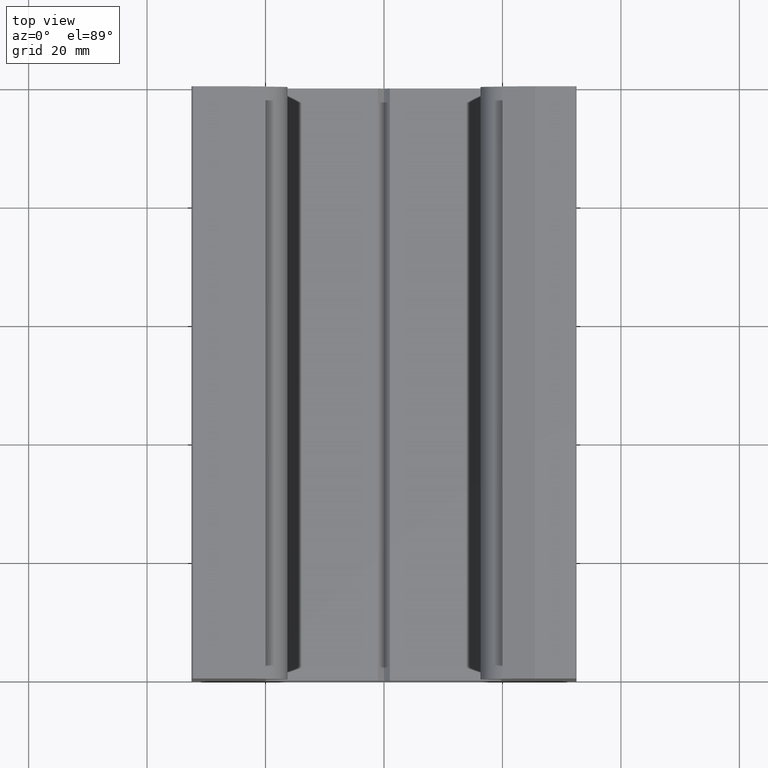
[diagram: clean part render]
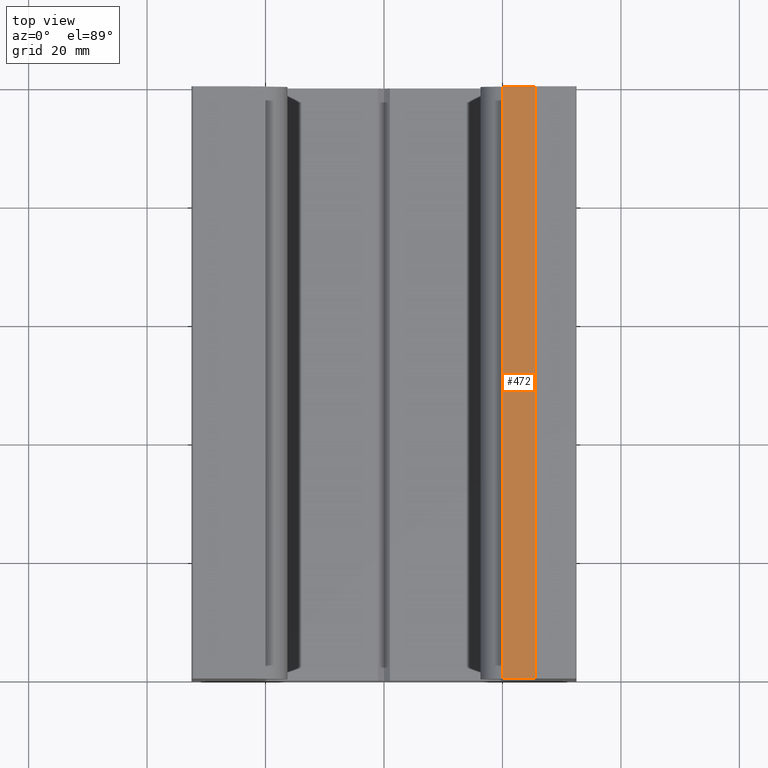
[diagram: same view with one face highlighted and labeled with its STEP entity id]
A machine part, top view. The second image highlights one B-rep face of the part: STEP entity #472.
In plain terms, the highlighted planar face has unit normal (-0.2588, 0, 0.9659).
Its self-contained STEP definition (entity closure, byte-faithful):
#16=PLANE('',#526);
#36=FACE_OUTER_BOUND('',#61,.T.);
#61=EDGE_LOOP('',(#338,#339,#340,#341));
#108=LINE('',#732,#161);
#109=LINE('',#735,#162);
#110=LINE('',#737,#163);
#111=LINE('',#738,#164);
#161=VECTOR('',#591,10.);
#162=VECTOR('',#594,10.);
#163=VECTOR('',#595,10.);
#164=VECTOR('',#596,10.);
#217=VERTEX_POINT('',#728);
#218=VERTEX_POINT('',#730);
#219=VERTEX_POINT('',#734);
#220=VERTEX_POINT('',#736);
#266=EDGE_CURVE('',#217,#218,#108,.T.);
#267=EDGE_CURVE('',#219,#217,#109,.T.);
#268=EDGE_CURVE('',#220,#218,#110,.T.);
#269=EDGE_CURVE('',#219,#220,#111,.T.);
#338=ORIENTED_EDGE('',*,*,#267,.T.);
#339=ORIENTED_EDGE('',*,*,#266,.T.);
#340=ORIENTED_EDGE('',*,*,#268,.F.);
#341=ORIENTED_EDGE('',*,*,#269,.F.);
#472=ADVANCED_FACE('',(#36),#16,.T.);
#526=AXIS2_PLACEMENT_3D('',#733,#592,#593);
#591=DIRECTION('',(0.,1.,0.));
#592=DIRECTION('center_axis',(-0.25881904510252,0.,0.965925826289069));
#593=DIRECTION('ref_axis',(0.965925826289069,0.,0.25881904510252));
#594=DIRECTION('',(0.965925826289069,0.,0.25881904510252));
#595=DIRECTION('',(0.965925826289069,0.,0.25881904510252));
#596=DIRECTION('',(0.,1.,0.));
#728=CARTESIAN_POINT('',(25.5,0.,16.));
#730=CARTESIAN_POINT('',(25.5,100.,16.));
#732=CARTESIAN_POINT('',(25.5,0.,16.));
#733=CARTESIAN_POINT('Origin',(20.,0.,14.5262794416288));
#734=CARTESIAN_POINT('',(20.,0.,14.5262794416288));
#735=CARTESIAN_POINT('',(20.,0.,14.5262794416288));
#736=CARTESIAN_POINT('',(20.,100.,14.5262794416288));
#737=CARTESIAN_POINT('',(20.,100.,14.5262794416288));
#738=CARTESIAN_POINT('',(20.,0.,14.5262794416288));